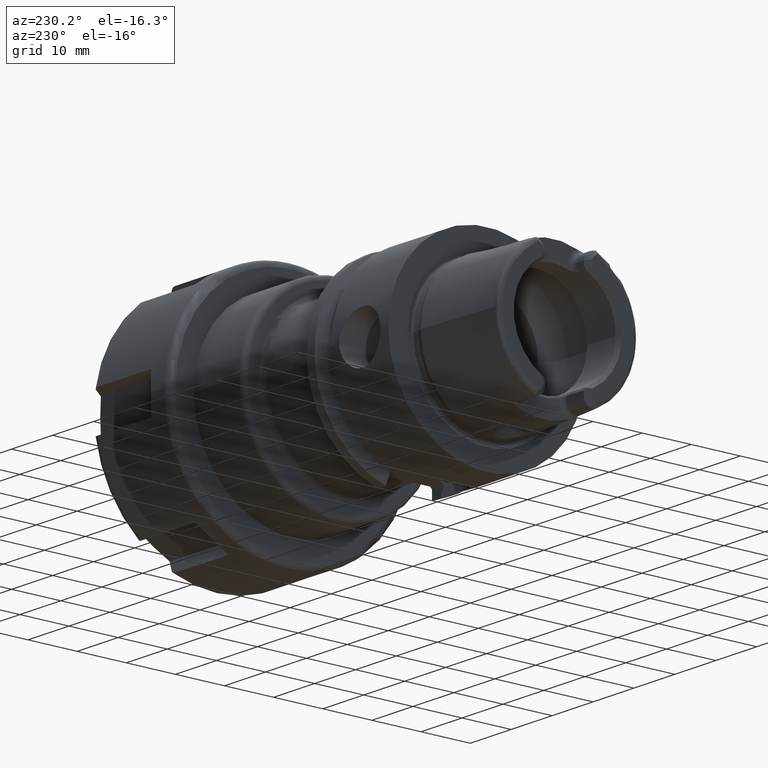
[diagram: clean part render]
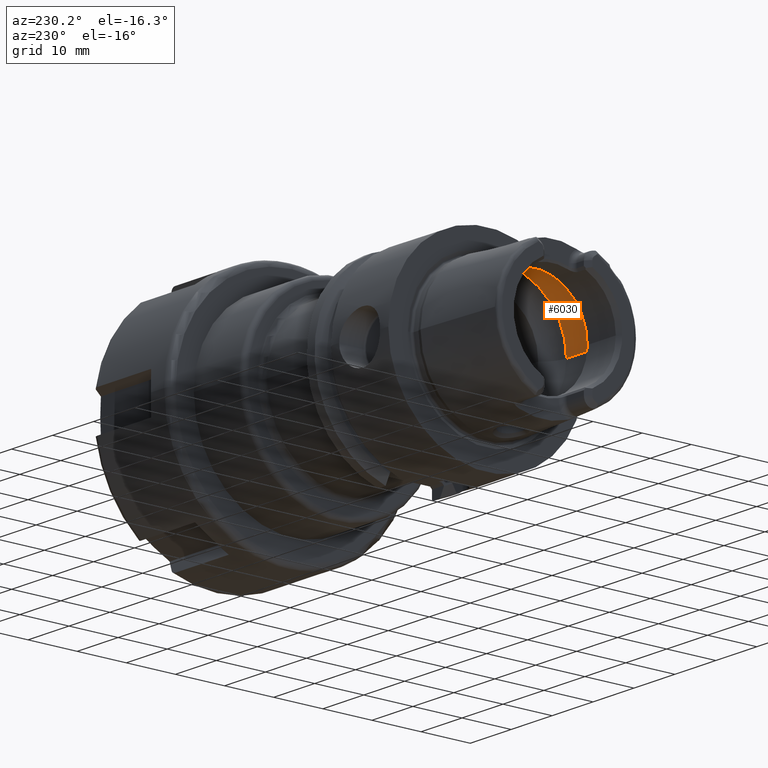
[diagram: same view with one face highlighted and labeled with its STEP entity id]
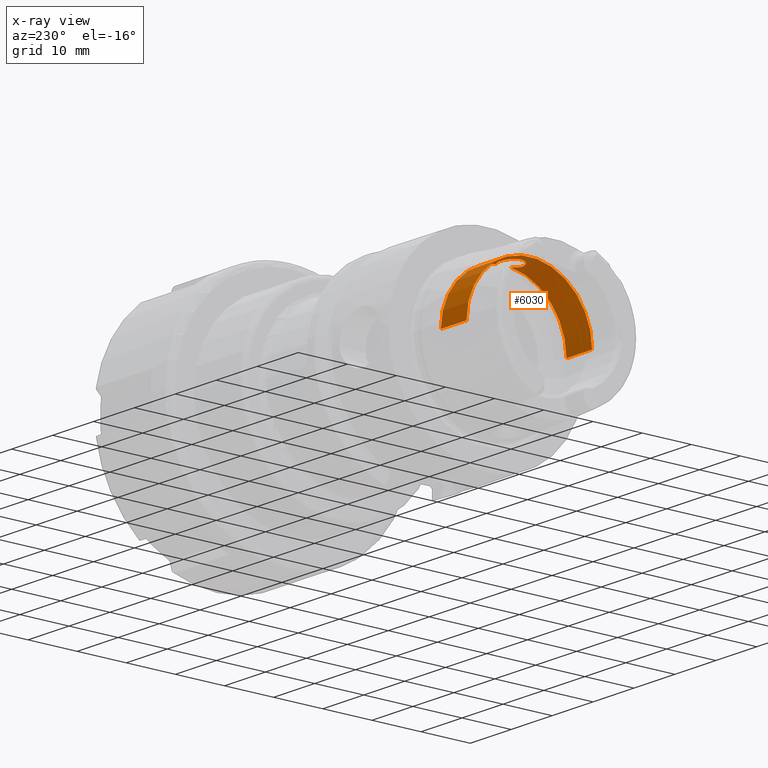
[diagram: x-ray of the same camera — body ghosted, the highlighted face saturated]
A machine part, auxiliary view. The second image highlights one B-rep face of the part: STEP entity #6030.
The next image is the same camera in x-ray: the body ghosted, the highlighted face saturated — about 5% of this face is hidden behind the body in this view.
In plain terms, the highlighted cylindrical surface (partial cylindrical patch) has radius 12.7825 mm, axis along (1, 0, 0).
Its self-contained STEP definition (entity closure, byte-faithful):
#2198=CARTESIAN_POINT('',(-4.183373967266E0,1.410627469318E0,1.270442585845E1));
#2200=CARTESIAN_POINT('',(-4.183373967266E0,-1.410627469318E0,
1.270442585845E1));
#2213=CARTESIAN_POINT('',(-4.183373967266E0,1.410627469318E0,1.270442585845E1));
#2214=CARTESIAN_POINT('',(-4.274403495326E0,1.527856584741E0,1.269140940164E1));
#2215=CARTESIAN_POINT('',(-4.475004226397E0,1.740624065046E0,1.266456559304E1));
#2216=CARTESIAN_POINT('',(-4.839193564595E0,2.002181783190E0,1.262539817910E1));
#2217=CARTESIAN_POINT('',(-5.241965889075E0,2.186602178495E0,1.259435938943E1));
#2218=CARTESIAN_POINT('',(-5.677773856708E0,2.291856147756E0,1.257540039172E1));
#2219=CARTESIAN_POINT('',(-6.123174914142E0,2.311225989116E0,1.257180628270E1));
#2220=CARTESIAN_POINT('',(-6.568867845807E0,2.243420386424E0,1.258424088453E1));
#2221=CARTESIAN_POINT('',(-6.984765866479E0,2.093901161388E0,1.261030394781E1));
#2222=CARTESIAN_POINT('',(-7.361388377958E0,1.870614129358E0,1.264575276759E1));
#2223=CARTESIAN_POINT('',(-7.685045178152E0,1.585221874079E0,1.268515470075E1));
#2224=CARTESIAN_POINT('',(-7.951993774449E0,1.241850886488E0,1.272379300211E1));
#2225=CARTESIAN_POINT('',(-8.150783387678E0,8.542522111254E-1,
1.275617300594E1));
#2226=CARTESIAN_POINT('',(-8.274571437991E0,4.243311612305E-1,
1.277787772158E1));
#2227=CARTESIAN_POINT('',(-8.3E0,1.424213966933E-1,1.27825E1));
#2228=CARTESIAN_POINT('',(-8.3E0,0.E0,1.27825E1));
#2230=CARTESIAN_POINT('',(-4.183373967266E0,0.E0,0.E0));
#2231=DIRECTION('',(1.E0,0.E0,0.E0));
#2232=DIRECTION('',(0.E0,1.E0,0.E0));
#2233=AXIS2_PLACEMENT_3D('',#2230,#2231,#2232);
#2235=CARTESIAN_POINT('',(-4.183373967266E0,0.E0,0.E0));
#2236=DIRECTION('',(1.E0,0.E0,0.E0));
#2237=DIRECTION('',(0.E0,-1.103561485873E-1,9.938921070564E-1));
#2238=AXIS2_PLACEMENT_3D('',#2235,#2236,#2237);
#2240=CARTESIAN_POINT('',(-8.3E0,0.E0,1.27825E1));
#2241=CARTESIAN_POINT('',(-8.3E0,-1.416090721544E-1,1.27825E1));
#2242=CARTESIAN_POINT('',(-8.274865995888E0,-4.220491537933E-1,
1.277793161855E1));
#2243=CARTESIAN_POINT('',(-8.152225433426E0,-8.502859641601E-1,
1.275642194175E1));
#2244=CARTESIAN_POINT('',(-7.955184913088E0,-1.236579221498E0,
1.272429532511E1));
#2245=CARTESIAN_POINT('',(-7.690676902815E0,-1.578995807713E0,
1.268592498166E1));
#2246=CARTESIAN_POINT('',(-7.370059158072E0,-1.864084023608E0,
1.264671945011E1));
#2247=CARTESIAN_POINT('',(-6.996021733486E0,-2.088568866862E0,
1.261119985800E1));
#2248=CARTESIAN_POINT('',(-6.579390599094E0,-2.240899810175E0,
1.258469853568E1));
#2249=CARTESIAN_POINT('',(-6.131290903816E0,-2.310946649201E0,
1.257185839313E1));
#2250=CARTESIAN_POINT('',(-5.683757208223E0,-2.292779437691E0,
1.257523007165E1));
#2251=CARTESIAN_POINT('',(-5.246631956785E0,-2.188306797954E0,
1.259406156357E1));
#2252=CARTESIAN_POINT('',(-4.841896324598E0,-2.003877808837E0,
1.262513077668E1));
#2253=CARTESIAN_POINT('',(-4.476190665979E0,-1.741789414792E0,
1.266441141396E1));
#2254=CARTESIAN_POINT('',(-4.274755801937E0,-1.528310290185E0,
1.269135902476E1));
#2255=CARTESIAN_POINT('',(-4.183373967266E0,-1.410627469318E0,
1.270442585845E1));
#2296=DIRECTION('',(-1.E0,0.E0,0.E0));
#2297=VECTOR('',#2296,6.265234204822E0);
#2298=CARTESIAN_POINT('',(-4.183373967266E0,-1.27825E1,0.E0));
#2299=LINE('',#2298,#2297);
#2300=DIRECTION('',(-1.E0,0.E0,0.E0));
#2301=VECTOR('',#2300,6.265234204822E0);
#2302=CARTESIAN_POINT('',(-4.183373967266E0,1.27825E1,0.E0));
#2303=LINE('',#2302,#2301);
#2552=CARTESIAN_POINT('',(-1.044860817209E1,0.E0,0.E0));
#2553=DIRECTION('',(1.E0,0.E0,0.E0));
#2554=DIRECTION('',(0.E0,1.E0,0.E0));
#2555=AXIS2_PLACEMENT_3D('',#2552,#2553,#2554);
#3121=CARTESIAN_POINT('',(-8.3E0,0.E0,1.27825E1));
#3122=VERTEX_POINT('',#3121);
#3147=CARTESIAN_POINT('',(-4.183373967266E0,1.27825E1,0.E0));
#3148=VERTEX_POINT('',#3147);
#3149=CARTESIAN_POINT('',(-1.044860817209E1,1.27825E1,0.E0));
#3150=VERTEX_POINT('',#3149);
#3159=CARTESIAN_POINT('',(-4.183373967266E0,-1.27825E1,0.E0));
#3160=VERTEX_POINT('',#3159);
#3161=CARTESIAN_POINT('',(-1.044860817209E1,-1.27825E1,0.E0));
#3162=VERTEX_POINT('',#3161);
#3177=VERTEX_POINT('',#2198);
#3178=VERTEX_POINT('',#2200);
#6013=CARTESIAN_POINT('',(-2.12925E1,0.E0,0.E0));
#6014=DIRECTION('',(1.E0,0.E0,0.E0));
#6015=DIRECTION('',(0.E0,-1.E0,0.E0));
#6016=AXIS2_PLACEMENT_3D('',#6013,#6014,#6015);
#6017=CYLINDRICAL_SURFACE('',#6016,1.27825E1);
#6018=ORIENTED_EDGE('',*,*,#5972,.F.);
#6019=ORIENTED_EDGE('',*,*,#6008,.F.);
#6021=ORIENTED_EDGE('',*,*,#6020,.T.);
#6023=ORIENTED_EDGE('',*,*,#6022,.T.);
#6025=ORIENTED_EDGE('',*,*,#6024,.F.);
#6026=ORIENTED_EDGE('',*,*,#6000,.F.);
#6027=ORIENTED_EDGE('',*,*,#5758,.F.);
#6028=EDGE_LOOP('',(#6018,#6019,#6021,#6023,#6025,#6026,#6027));
#6029=FACE_OUTER_BOUND('',#6028,.F.);
#6030=ADVANCED_FACE('',(#6029),#6017,.F.);
#2229=B_SPLINE_CURVE_WITH_KNOTS('',3,(#2213,#2214,#2215,#2216,#2217,#2218,#2219,
#2220,#2221,#2222,#2223,#2224,#2225,#2226,#2227,#2228),.UNSPECIFIED.,.F.,.F.,(4,
1,1,1,1,1,1,1,1,1,1,1,1,4),(0.E0,7.692307692308E-2,1.538461538462E-1,
2.307692307692E-1,3.076923076923E-1,3.846153846154E-1,4.615384615385E-1,
5.384615384615E-1,6.153846153846E-1,6.923076923077E-1,7.692307692308E-1,
8.461538461538E-1,9.230769230769E-1,1.E0),.UNSPECIFIED.);
#2234=CIRCLE('',#2233,1.27825E1);
#2239=CIRCLE('',#2238,1.27825E1);
#2256=B_SPLINE_CURVE_WITH_KNOTS('',3,(#2240,#2241,#2242,#2243,#2244,#2245,#2246,
#2247,#2248,#2249,#2250,#2251,#2252,#2253,#2254,#2255),.UNSPECIFIED.,.F.,.F.,(4,
1,1,1,1,1,1,1,1,1,1,1,1,4),(0.E0,7.692307692308E-2,1.538461538462E-1,
2.307692307692E-1,3.076923076923E-1,3.846153846154E-1,4.615384615385E-1,
5.384615384615E-1,6.153846153846E-1,6.923076923077E-1,7.692307692308E-1,
8.461538461538E-1,9.230769230769E-1,1.E0),.UNSPECIFIED.);
#2556=CIRCLE('',#2555,1.27825E1);
#5758=EDGE_CURVE('',#3122,#3178,#2256,.T.);
#5972=EDGE_CURVE('',#3177,#3122,#2229,.T.);
#6000=EDGE_CURVE('',#3178,#3160,#2239,.T.);
#6008=EDGE_CURVE('',#3148,#3177,#2234,.T.);
#6020=EDGE_CURVE('',#3148,#3150,#2303,.T.);
#6022=EDGE_CURVE('',#3150,#3162,#2556,.T.);
#6024=EDGE_CURVE('',#3160,#3162,#2299,.T.);